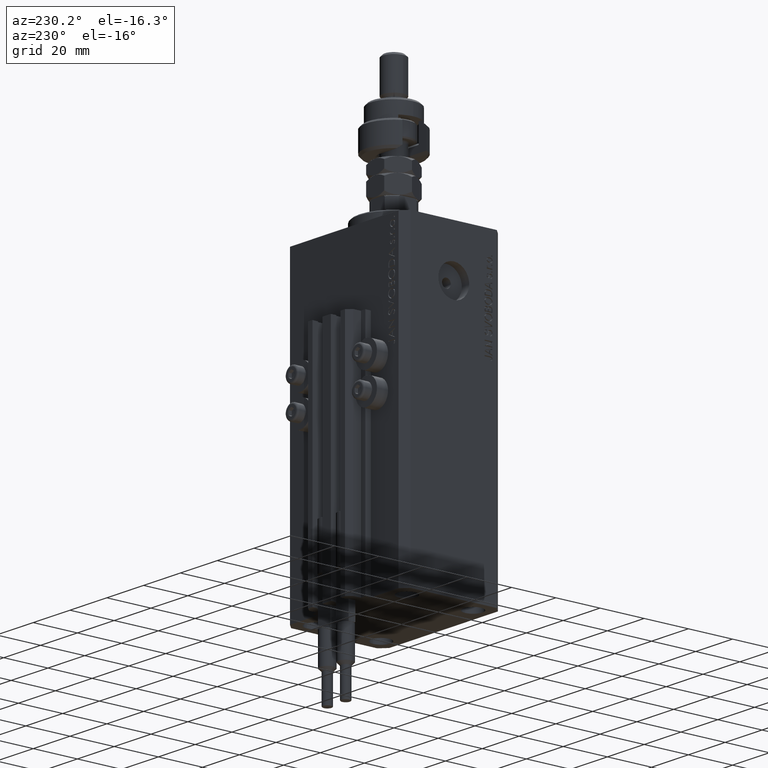
[diagram: clean part render]
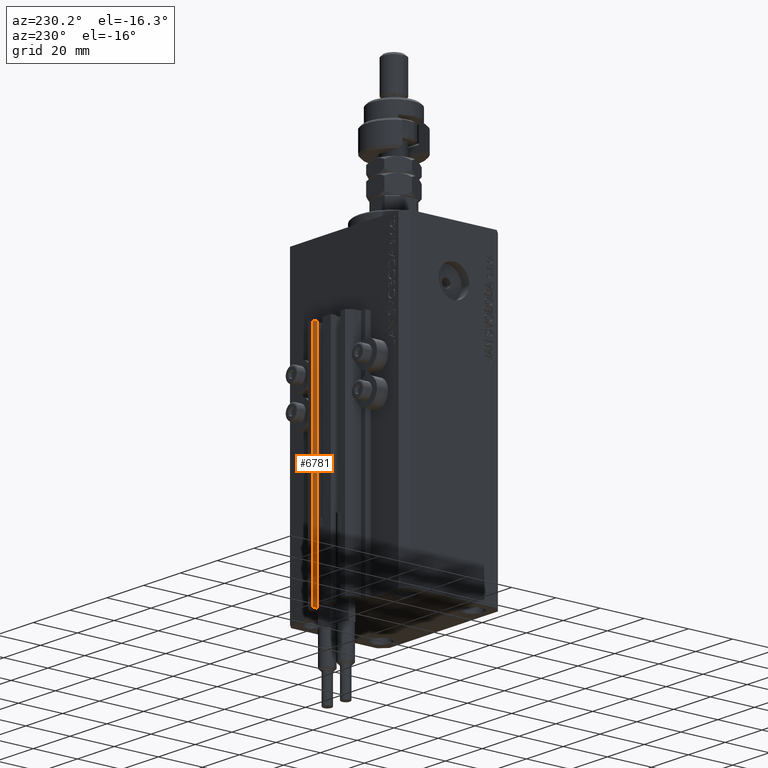
[diagram: same view with one face highlighted and labeled with its STEP entity id]
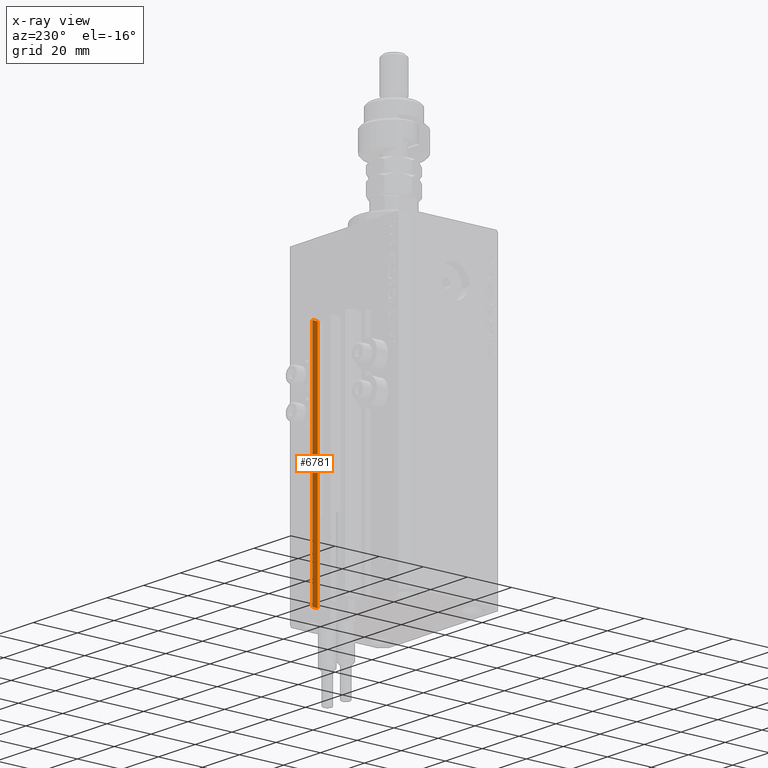
[diagram: x-ray of the same camera — body ghosted, the highlighted face saturated]
A machine part, auxiliary view. The second image highlights one B-rep face of the part: STEP entity #6781.
The next image is the same camera in x-ray: the body ghosted, the highlighted face saturated — about 0% of this face is hidden behind the body in this view.
In plain terms, the highlighted planar face has unit normal (-1, -0, 0).
Its self-contained STEP definition (entity closure, byte-faithful):
#3502 = VECTOR ( 'NONE', #22437, 1000.000000000000000 ) ;
#5063 = EDGE_CURVE ( 'NONE', #17749, #28767, #31582, .T. ) ;
#5784 = AXIS2_PLACEMENT_3D ( 'NONE', #18981, #50846, #23338 ) ;
#6756 = CARTESIAN_POINT ( 'NONE',  ( 7.649999999999995026, 30.49999999999949196, -33.00000000000000000 ) ) ;
#6781 = ADVANCED_FACE ( 'NONE', ( #50591 ), #7673, .T. ) ;
#6812 = CARTESIAN_POINT ( 'NONE',  ( 7.649999999999995026, 30.49999999999949196, -137.0000000000000000 ) ) ;
#7110 = ORIENTED_EDGE ( 'NONE', *, *, #5063, .F. ) ;
#7673 = PLANE ( 'NONE',  #5784 ) ;
#8327 = CARTESIAN_POINT ( 'NONE',  ( 7.649999999999995914, 28.09999999999950404, -137.0000000000000000 ) ) ;
#8400 = VECTOR ( 'NONE', #17884, 1000.000000000000000 ) ;
#12073 = CARTESIAN_POINT ( 'NONE',  ( 7.649999999999995026, 30.49999999999949196, -137.0000000000000000 ) ) ;
#14613 = VECTOR ( 'NONE', #43447, 1000.000000000000000 ) ;
#17749 = VERTEX_POINT ( 'NONE', #49934 ) ;
#17884 = DIRECTION ( 'NONE',  ( 3.614007241618365534E-16, -1.000000000000000000, 0.000000000000000000 ) ) ;
#18981 = CARTESIAN_POINT ( 'NONE',  ( 7.649999999999995026, 30.49999999999949196, -137.0000000000000000 ) ) ;
#19874 = CARTESIAN_POINT ( 'NONE',  ( 7.649999999999995026, 30.49999999999949196, -33.00000000000000000 ) ) ;
#21677 = LINE ( 'NONE', #24773, #48259 ) ;
#22437 = DIRECTION ( 'NONE',  ( 3.614007241618365534E-16, -1.000000000000000000, 0.000000000000000000 ) ) ;
#23338 = DIRECTION ( 'NONE',  ( 3.614007241618365534E-16, -1.000000000000000000, 0.000000000000000000 ) ) ;
#24773 = CARTESIAN_POINT ( 'NONE',  ( 7.649999999999995914, 28.09999999999950404, -137.0000000000000000 ) ) ;
#25276 = ORIENTED_EDGE ( 'NONE', *, *, #49102, .T. ) ;
#26592 = LINE ( 'NONE', #6812, #8400 ) ;
#26616 = ORIENTED_EDGE ( 'NONE', *, *, #36745, .T. ) ;
#27716 = ORIENTED_EDGE ( 'NONE', *, *, #37073, .F. ) ;
#28767 = VERTEX_POINT ( 'NONE', #19874 ) ;
#29416 = VERTEX_POINT ( 'NONE', #8327 ) ;
#30126 = LINE ( 'NONE', #6756, #3502 ) ;
#31582 = LINE ( 'NONE', #12073, #14613 ) ;
#33921 = VERTEX_POINT ( 'NONE', #35784 ) ;
#35784 = CARTESIAN_POINT ( 'NONE',  ( 7.649999999999995914, 28.09999999999950404, -33.00000000000000000 ) ) ;
#36745 = EDGE_CURVE ( 'NONE', #17749, #29416, #26592, .T. ) ;
#37073 = EDGE_CURVE ( 'NONE', #28767, #33921, #30126, .T. ) ;
#40465 = DIRECTION ( 'NONE',  ( 0.000000000000000000, 0.000000000000000000, 1.000000000000000000 ) ) ;
#43447 = DIRECTION ( 'NONE',  ( 0.000000000000000000, 0.000000000000000000, 1.000000000000000000 ) ) ;
#48259 = VECTOR ( 'NONE', #40465, 1000.000000000000000 ) ;
#49102 = EDGE_CURVE ( 'NONE', #29416, #33921, #21677, .T. ) ;
#49537 = EDGE_LOOP ( 'NONE', ( #27716, #7110, #26616, #25276 ) ) ;
#49934 = CARTESIAN_POINT ( 'NONE',  ( 7.649999999999995026, 30.49999999999949196, -137.0000000000000000 ) ) ;
#50591 = FACE_OUTER_BOUND ( 'NONE', #49537, .T. ) ;
#50846 = DIRECTION ( 'NONE',  ( -1.000000000000000000, -3.614007241618365534E-16, 0.000000000000000000 ) ) ;